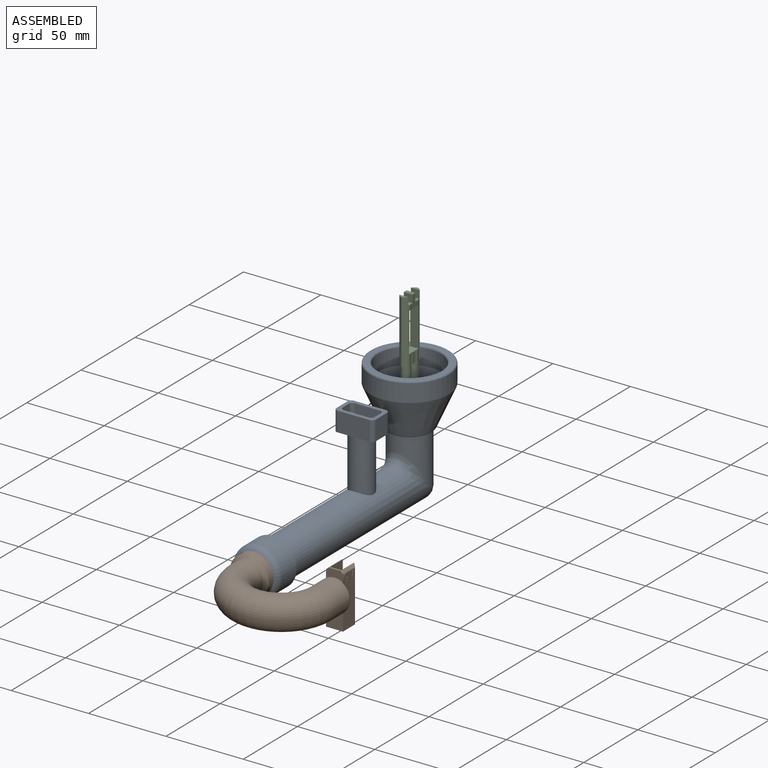
[diagram: assembled view]
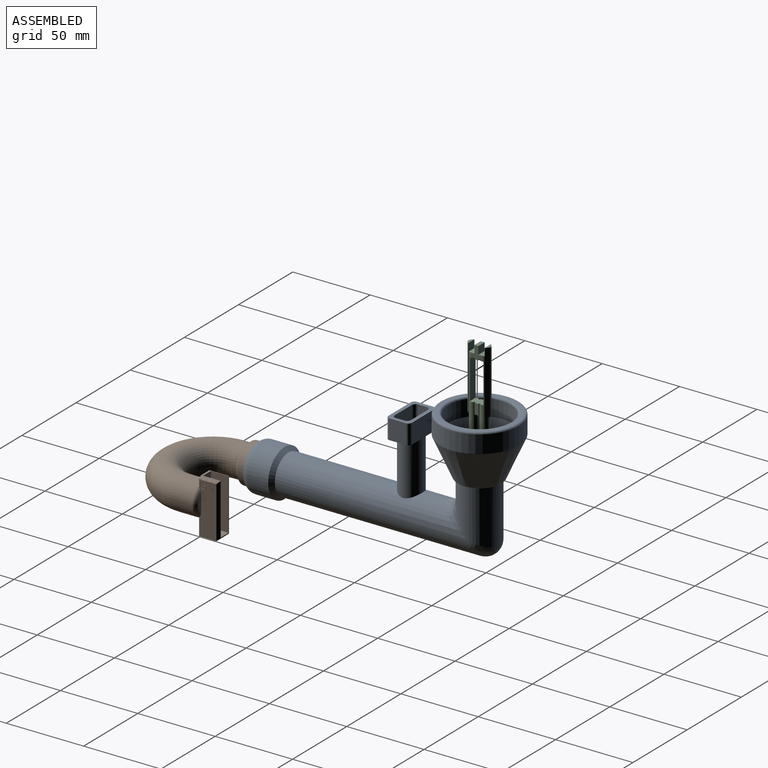
[diagram: assembled view, second angle]
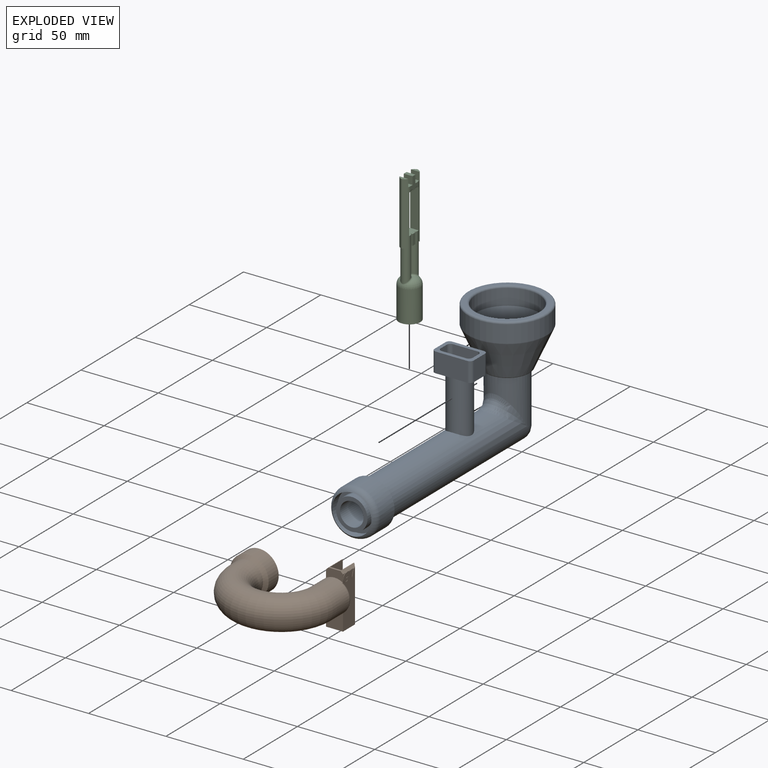
[diagram: exploded view]
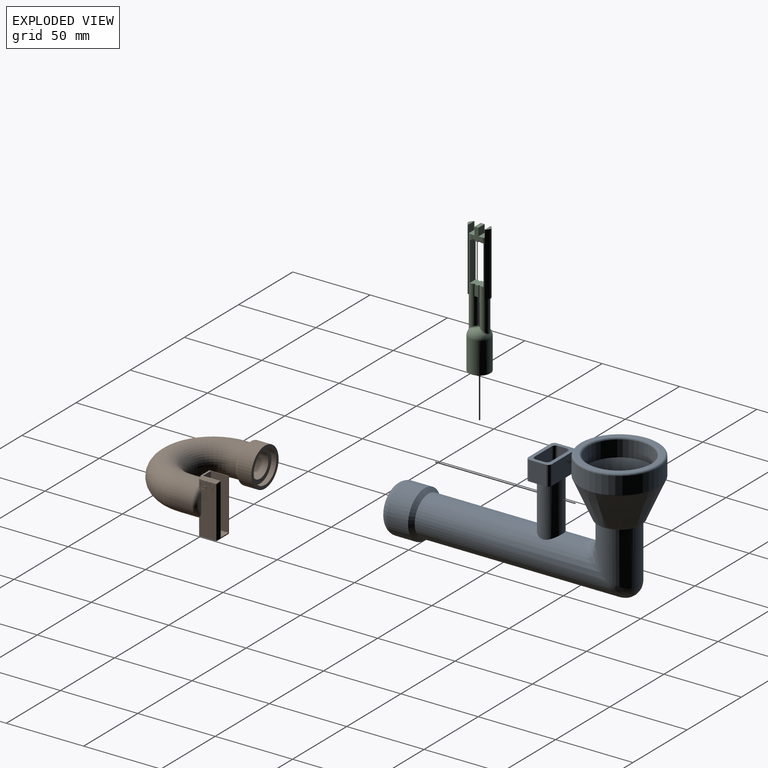
[diagram: exploded view, second angle]
ASSEMBLY  parts=3 mates=2
PART A: 59 faces, bbox 55.7x86.4x172.7 mm
  f0: plane 10.11x1.49mm, normal (0,-1,0), area 4.1mm2, adj f34,f35,f36,f43
  f1: plane 25.4x15.24mm, normal (0,-1,0), area 171.5mm2, adj f21,f22,f23,f24,f25,f26,f27,f28
  f2: cylinder r=12.7mm len=36.09mm, axis (0,1,0), area 2086.4mm2, adj f4,f5,f7
  f3: cylinder r=12.7mm len=128.53mm, axis (0,0,1), area 9271.2mm2, adj f4,f5,f10,f57
  f4: bspline ~25.4x20.32mm, area 353.2mm2, adj f2,f3
  f5: bspline ~25.4x12.7mm, area 316.3mm2, adj f2,f3
  f6: cylinder r=25.4mm len=50.8mm, axis (0,-1,0), area 1781.1mm2, adj f50,f51
  f7: plane 26.53x26.53mm, normal (0,1,0), area 46.2mm2, adj f2,f49
  f8: plane 48.26x48.26mm, normal (0,-1,0), area 364.8mm2, adj f47,f51
  f9: cone r=25.4mm half-angle=24deg, axis (0,-1,0), area 3332.6mm2, adj f49,f50
  f10: cylinder r=7.62mm len=34.31mm, axis (0,-1,0), area 1580mm2, adj f3,f19,f20
  f11: cylinder r=7.62mm len=39.9mm, axis (0,1,0), area 1434.2mm2, adj f13,f14,f48
  f12: cylinder r=7.62mm len=148.85mm, axis (0,0,1), area 6563.7mm2, adj f13,f14,f18,f55
  f13: bspline ~20.32x20.32mm, area 386mm2, adj f11,f12
  f14: bspline ~15.24x7.62mm, area 64.9mm2, adj f11,f12
  f15: cylinder r=20.32mm len=40.64mm, axis (0,-1,0), area 1321.5mm2, adj f17,f47
  f16: plane 19.94x19.94mm, normal (0,-1,0), area 63.8mm2, adj f46,f48
  f17: cone r=20.76mm half-angle=24deg, axis (0,-1,0), area 2232.8mm2, adj f15,f46
  f18: cylinder r=5.08mm len=38.84mm, axis (0,-1,0), area 1120.3mm2, adj f12,f38,f39,f40,f41,f42,f43,f44
  f19: plane 15.24x12.7mm, normal (0,1,0), area 99.9mm2, adj f10,f21,f22,f23,f24,f25
  f20: plane 15.24x12.7mm, normal (0,1,0), area 99.9mm2, adj f10,f21,f25,f26,f27,f28
  f21: plane 20.62x12.7mm, normal (0,0,1), area 261.8mm2, adj f1,f19,f20,f22,f28
  f22: cylinder r=2.39mm len=12.7mm, axis (0,1,0), area 47.7mm2, adj f1,f19,f21,f23
  f23: plane 12.7x10.46mm, normal (-1,0,0), area 132.8mm2, adj f1,f19,f22,f24
  f24: cylinder r=2.39mm len=12.7mm, axis (0,1,0), area 47.7mm2, adj f1,f19,f23,f25
  f25: plane 20.62x12.7mm, normal (0,0,-1), area 261.8mm2, adj f1,f19,f20,f24,f26
  f26: cylinder r=2.39mm len=12.7mm, axis (0,1,0), area 47.7mm2, adj f1,f20,f25,f27
  f27: plane 12.7x10.46mm, normal (1,0,0), area 132.8mm2, adj f1,f20,f26,f28
  f28: cylinder r=2.39mm len=12.7mm, axis (0,1,0), area 47.7mm2, adj f1,f20,f21,f27
  f29: plane 16.6x12.19mm, normal (0,0,-1), area 181mm2, adj f1,f30,f36,f44
  f30: cylinder r=2.39mm len=11.43mm, axis (0,-1,0), area 42.9mm2, adj f1,f29,f31,f37,f42
  f31: plane 11.43x5.67mm, normal (1,0,0), area 64.9mm2, adj f1,f30,f32,f37
  f32: cylinder r=2.39mm len=11.43mm, axis (0,-1,0), area 42.9mm2, adj f1,f31,f33,f37,f38
  f33: plane 16.6x12.19mm, normal (0,0,1), area 181mm2, adj f1,f32,f34,f39
  f34: cylinder r=2.39mm len=11.43mm, axis (0,-1,0), area 42.9mm2, adj f0,f1,f33,f35,f41
  f35: plane 11.43x5.67mm, normal (-1,0,0), area 64.9mm2, adj f0,f1,f34,f36
  f36: cylinder r=2.39mm len=11.43mm, axis (0,-1,0), area 42.9mm2, adj f0,f1,f29,f35,f45
  f37: plane 10.11x1.49mm, normal (0,-1,0), area 4.1mm2, adj f30,f31,f32,f40
  f38: bspline ~5.68x5.53mm, area 3.9mm2, adj f18,f32,f39,f40
  f39: bspline ~16.48x5.04mm, area 42.4mm2, adj f18,f33,f38,f41
  f40: torus R=10.16mm, axis (0,-1,0), area 57.5mm2, adj f18,f37,f38,f42
  f41: bspline ~5.29x5.29mm, area 3.9mm2, adj f18,f34,f39,f43
  f42: bspline ~5.29x5.29mm, area 3.9mm2, adj f18,f30,f40,f44
  f43: torus R=10.16mm, axis (0,-1,0), area 57.5mm2, adj f0,f18,f41,f45
  f44: bspline ~16.48x5.04mm, area 42.4mm2, adj f18,f29,f42,f45
  f45: bspline ~5.68x5.53mm, area 3.9mm2, adj f18,f36,f43,f44
  f46: torus R=9.97mm, axis (0,-1,0), area 97.6mm2, adj f16,f17
  f47: torus R=21.59mm, axis (0,-1,0), area 260.5mm2, adj f8,f15
  f48: torus R=8.89mm, axis (0,-1,0), area 101.3mm2, adj f11,f16
  f49: torus R=13.27mm, axis (0,-1,0), area 128mm2, adj f7,f9
  f50: torus R=24.13mm, axis (0,1,0), area 84.8mm2, adj f6,f9
  f51: torus R=24.13mm, axis (0,-1,0), area 312.6mm2, adj f6,f8
  f52: cylinder r=12.7mm len=25.4mm, axis (0,0,-1), area 405.4mm2, adj f56,f58
  f53: cylinder r=15.24mm len=30.48mm, axis (0,0,-1), area 1281.3mm2, adj f57,f58
  f54: cylinder r=10.16mm len=20.32mm, axis (0,0,-1), area 324.3mm2, adj f55,f56
  f55: plane 20.32x20.32mm, normal (0,0,1), area 141.9mm2, adj f12,f54
  f56: plane 25.4x25.4mm, normal (0,0,1), area 182.4mm2, adj f52,f54
  f57: cone r=17.78mm half-angle=45deg, axis (0,0,1), area 315.3mm2, adj f3,f53
  f58: torus R=10.16mm, axis (0,0,1), area 480mm2, adj f52,f53
PART B: 126 faces, bbox 77.7x64.3x35.1 mm
  f0: plane 33.41x12.45mm, normal (1,0,0), area 335.7mm2, adj f7,f12,f13,f16,f25,f30,f31,f32
  f1: cylinder r=10.41mm len=20.83mm, axis (0,-1,0), area 290.9mm2, adj f6,f11
  f2: cylinder r=7.62mm len=15.24mm, axis (0,-1,0), area 608mm2, adj f3,f5
  f3: torus R=25.4mm, axis (0,0,1), area 3820.5mm2, adj f2,f4
  f4: cylinder r=7.62mm len=15.24mm, axis (0,1,0), area 589.2mm2, adj f3,f14,f18,f20,f22,f27,f28
  f5: plane 20.83x20.83mm, normal (0,1,0), area 158.3mm2, adj f2,f8
  f6: torus R=25.4mm, axis (0,0,1), area 5221.3mm2, adj f1,f7
  f7: cylinder r=10.41mm len=20.83mm, axis (0,1,0), area 777.2mm2, adj f0,f6,f12,f13,f17,f29,f30
  f8: cylinder r=10.41mm len=20.83mm, axis (0,-1,0), area 207.8mm2, adj f5,f10
  f9: cylinder r=12.55mm len=25.1mm, axis (0,-1,0), area 732.9mm2, adj f10,f11
  f10: plane 25.1x25.1mm, normal (0,1,0), area 153.9mm2, adj f8,f9
  f11: cone r=10.41mm half-angle=45deg, axis (0,1,0), area 217.7mm2, adj f1,f9
  f12: plane 10.95x6.38mm, normal (0,-1,0), area 56mm2, adj f0,f7,f15,f17,f31,f35
  f13: plane 10.95x10.83mm, normal (0,-1,0), area 107.1mm2, adj f0,f7,f16,f17
  f14: plane 13.46x4.05mm, normal (0,-1,0), area 38.8mm2, adj f4,f20
  f15: plane 12.7x7.91mm, normal (0,0,1), area 18.7mm2, adj f12,f18,f20,f21,f24,f31,f35
  f16: plane 11.18x10.95mm, normal (0,0,-1), area 122.4mm2, adj f0,f13,f17,f33
  f17: plane 33.4x12.45mm, normal (-1,0,0), area 354.1mm2, adj f7,f12,f13,f16,f26,f29,f34,f35
  f18: plane 33.19x14.14mm, normal (1,0,0), area 401.6mm2, adj f4,f15,f19,f21,f22,f23,f24,f27
  f19: plane 11.43x7.14mm, normal (0,0,1), area 81.7mm2, adj f18,f20,f21,f23
  f20: plane 33.19x14.14mm, normal (-1,0,0), area 401.6mm2, adj f4,f14,f15,f19,f21,f23,f24,f27
  f21: plane 33.4x7.91mm, normal (0,1,0), area 28.2mm2, adj f15,f18,f19,f20,f32,f33,f34
  f22: plane 13.46x4.05mm, normal (0,-1,0), area 38.8mm2, adj f4,f18
  f23: plane 8.27x7.14mm, normal (0,1,0), area 56mm2, adj f18,f19,f20,f27
  f24: plane 7.14x5.73mm, normal (0,1,0), area 37.8mm2, adj f15,f18,f20,f28
  f25: plane 11.31x2.4mm, normal (0,1,0), area 18.7mm2, adj f0,f30
  f26: plane 11.31x2.4mm, normal (0,1,0), area 18.7mm2, adj f17,f29
  f27: cone r=7.62mm half-angle=45deg, axis (0,1,0), area 26.9mm2, adj f4,f18,f20,f23
  f28: cone r=7.62mm half-angle=45deg, axis (0,1,0), area 26.9mm2, adj f4,f18,f20,f24
  f29: torus R=7.87mm, axis (0,1,0), area 72.3mm2, adj f7,f17,f26
  f30: torus R=7.87mm, axis (0,1,0), area 72.3mm2, adj f0,f7,f25
  f31: plane 12.7x1.52mm, normal (0.71,0,0.71), area 25.7mm2, adj f0,f12,f15,f32,f63
  f32: plane 34.93x1.52mm, normal (0.71,0.71,0), area 72mm2, adj f0,f21,f31,f33
  f33: plane 10.95x1.52mm, normal (0,0.71,-0.71), area 20.3mm2, adj f16,f21,f32,f34
  f34: plane 34.93x1.52mm, normal (-0.71,0.71,0), area 72mm2, adj f17,f21,f33,f35
  f35: plane 12.7x1.52mm, normal (-0.71,0,0.71), area 25.7mm2, adj f12,f15,f17,f34
  f36: extruded ~1.08x0.23mm, area 0.3mm2, adj f0,f37,f61,f63,f104
  f37: extruded ~1.85x0.78mm, area 0.5mm2, adj f0,f36,f38,f63,f102
  f38: extruded ~2.03x0.69mm, area 0.5mm2, adj f0,f37,f39,f100
  f39: plane 0.23x0.09mm, normal (0,-1,0), area 0mm2, adj f0,f38,f40,f98
  f40: extruded ~2.02x0.7mm, area 0.5mm2, adj f0,f39,f41,f96
  f41: extruded ~1.81x0.78mm, area 0.5mm2, adj f0,f40,f42,f94
  f42: extruded ~1.24x0.23mm, area 0.3mm2, adj f0,f41,f43,f92
  f43: extruded ~0.72x0.48mm, area 0.2mm2, adj f0,f42,f44,f90
  f44: plane 2.01x0.23mm, normal (0,1,0), area 0.5mm2, adj f0,f43,f45,f83,f88
  f45: plane 1.66x0.23mm, normal (0,0,1), area 0.4mm2, adj f44,f46,f62,f83,f84,f88
  f46: plane 0.58x0.23mm, normal (0,-1,0), area 0.1mm2, adj f0,f45,f47,f83,f84
  f47: plane 0.91x0.23mm, normal (0,-0.04,-1), area 0.2mm2, adj f0,f46,f48,f85
  f48: plane 1.21x0.23mm, normal (0,-1,0), area 0.3mm2, adj f0,f47,f49,f86
  f49: extruded ~0.46x0.23mm, area 0.1mm2, adj f0,f48,f50,f87
  f50: extruded ~0.74x0.23mm, area 0.2mm2, adj f0,f49,f51,f89
  f51: extruded ~1.3x0.61mm, area 0.3mm2, adj f0,f50,f52,f91
  f52: extruded ~1.61x0.47mm, area 0.4mm2, adj f0,f51,f53,f93
  f53: plane 0.23x0.1mm, normal (0,1,0), area 0mm2, adj f0,f52,f54,f95
  f54: extruded ~1.59x0.48mm, area 0.4mm2, adj f0,f53,f55,f97
  f55: extruded ~1.38x0.61mm, area 0.4mm2, adj f0,f54,f56,f99
  f56: extruded ~0.63x0.23mm, area 0.1mm2, adj f0,f55,f57,f101
  f57: extruded ~0.45x0.25mm, area 0.1mm2, adj f0,f56,f58,f103
  f58: plane 0.76x0.23mm, normal (0,-0.97,-0.23), area 0.2mm2, adj f0,f57,f59,f105
  f59: plane 0.52x0.23mm, normal (0,0,-1), area 0.1mm2, adj f0,f58,f60,f107
  f60: plane 1x0.23mm, normal (0,1,0), area 0.2mm2, adj f0,f59,f61,f108
  f61: extruded ~0.79x0.51mm, area 0.2mm2, adj f0,f36,f60,f106
  f62: plane 5.65x4.42mm, normal (1,0,0), area 8.9mm2, adj f45,f84,f85,f86,f87,f88,f89,f90
  f63: plane 0.52x0.01mm, normal (-1,0,0), area 0mm2, adj f31,f36,f37
  f64: plane 0.48x0.23mm, normal (0,1,0), area 0.1mm2, adj f0,f65,f81,f124
  f65: plane 1.75x0.23mm, normal (0,0,1), area 0.4mm2, adj f0,f64,f66,f125
  f66: plane 0.48x0.23mm, normal (0,-1,0), area 0.1mm2, adj f0,f65,f67,f123
  f67: plane 0.44x0.23mm, normal (0,-0.14,-0.99), area 0.1mm2, adj f0,f66,f68,f121
  f68: plane 4.99x1.86mm, normal (0,-0.94,-0.35), area 1.2mm2, adj f0,f67,f69,f119
  f69: plane 0.64x0.23mm, normal (0,0,-1), area 0.1mm2, adj f0,f68,f70,f117
  f70: plane 4.99x1.86mm, normal (0,0.94,-0.35), area 1.2mm2, adj f0,f69,f71,f116
  f71: plane 0.44x0.23mm, normal (0,0.14,-0.99), area 0.1mm2, adj f0,f70,f72,f115
  f72: plane 0.48x0.23mm, normal (0,1,0), area 0.1mm2, adj f0,f71,f73,f114
  f73: plane 1.75x0.23mm, normal (0,0,1), area 0.4mm2, adj f0,f72,f74,f113
  f74: plane 0.48x0.23mm, normal (0,-1,0), area 0.1mm2, adj f0,f73,f75,f112
  f75: plane 0.5x0.23mm, normal (0,-0.15,-0.99), area 0.1mm2, adj f0,f74,f76,f111
  f76: plane 3.6x1.24mm, normal (0,-0.95,0.32), area 0.9mm2, adj f0,f75,f77,f110
  f77: plane 0.44x0.23mm, normal (0,-0.96,0.28), area 0.1mm2, adj f0,f76,f78,f109
  f78: plane 0.26x0.08mm, normal (0,0,1), area 0mm2, adj f0,f77,f79,f82,f109,f118
  f79: plane 0.44x0.23mm, normal (0,0.96,0.28), area 0.1mm2, adj f0,f78,f80,f118
  f80: plane 3.6x1.24mm, normal (0,0.95,0.33), area 0.9mm2, adj f0,f79,f81,f120
  f81: plane 0.51x0.23mm, normal (0,0.15,-0.99), area 0.1mm2, adj f0,f64,f80,f122
  f82: plane 5.49x5.19mm, normal (1,0,0), area 8.1mm2, adj f78,f109,f110,f111,f112,f113,f114,f115
  f83: cylinder r=0.03mm len=1.66mm, axis (0,1,0), area 0.1mm2, adj f0,f44,f45,f46
  f84: cylinder r=0.03mm len=0.55mm, axis (0,0,1), area 0mm2, adj f45,f46,f62,f85
  f85: cylinder r=0.03mm len=0.93mm, axis (0,-1,0.04), area 0mm2, adj f47,f62,f84,f86
  f86: cylinder r=0.03mm len=1.25mm, axis (0,0,1), area 0mm2, adj f48,f62,f85,f87
  f87: bspline ~0.64x0.3mm, area 0mm2, adj f49,f62,f86,f89
  f88: cylinder r=0.03mm len=1.98mm, axis (0,0,-1), area 0.1mm2, adj f44,f45,f62,f90
  f89: bspline ~0.94x0.13mm, area 0mm2, adj f50,f62,f87,f91
  f90: bspline ~0.97x0.66mm, area 0mm2, adj f43,f62,f88,f92
  f91: bspline ~2.08x1.02mm, area 0.1mm2, adj f51,f62,f89,f93
  f92: bspline ~1.55x0.28mm, area 0.1mm2, adj f42,f62,f90,f94
  f93: bspline ~2.22x0.7mm, area 0.1mm2, adj f52,f62,f91,f95
  f94: bspline ~2.79x1.07mm, area 0.1mm2, adj f41,f62,f92,f96
  f95: cylinder r=0.03mm len=0.1mm, axis (0,0,-1), area 0mm2, adj f53,f62,f93,f97
  f96: bspline ~2.52x0.79mm, area 0.1mm2, adj f40,f62,f94,f98
  f97: bspline ~2.19x0.71mm, area 0.1mm2, adj f54,f62,f95,f99
  f98: cylinder r=0.03mm len=0.09mm, axis (0,0,1), area 0mm2, adj f39,f62,f96,f100
  f99: bspline ~2.24x1.04mm, area 0.1mm2, adj f55,f62,f97,f101
  f100: bspline ~2.76x0.99mm, area 0.1mm2, adj f38,f62,f98,f102
  f101: bspline ~0.79x0.17mm, area 0mm2, adj f56,f62,f99,f103
  f102: bspline ~2.83x1.07mm, area 0.1mm2, adj f37,f62,f100,f104
  f103: bspline ~0.69x0.41mm, area 0mm2, adj f57,f62,f101,f105
  f104: bspline ~1.34x0.24mm, area 0mm2, adj f36,f62,f102,f106
  f105: cylinder r=0.03mm len=0.78mm, axis (0,-0.23,0.97), area 0mm2, adj f58,f62,f103,f107
  f106: bspline ~1.14x0.77mm, area 0mm2, adj f61,f62,f104,f108
  f107: cylinder r=0.03mm len=0.52mm, axis (0,-1,0), area 0mm2, adj f59,f62,f105,f108
  f108: cylinder r=0.03mm len=1mm, axis (0,0,-1), area 0mm2, adj f60,f62,f106,f107
  f109: cylinder r=0.03mm len=0.44mm, axis (0,0.28,0.96), area 0mm2, adj f77,f78,f82,f110
  f110: cylinder r=0.03mm len=3.64mm, axis (0,0.32,0.95), area 0.2mm2, adj f76,f82,f109,f111
  f111: cylinder r=0.03mm len=0.53mm, axis (0,-0.99,0.15), area 0mm2, adj f75,f82,f110,f112
  f112: cylinder r=0.03mm len=0.48mm, axis (0,0,1), area 0mm2, adj f74,f82,f111,f113
  f113: cylinder r=0.03mm len=1.75mm, axis (0,1,0), area 0.1mm2, adj f73,f82,f112,f114
  f114: cylinder r=0.03mm len=0.48mm, axis (0,0,-1), area 0mm2, adj f72,f82,f113,f115
  f115: cylinder r=0.03mm len=0.46mm, axis (0,-0.99,-0.14), area 0mm2, adj f71,f82,f114,f116
  f116: cylinder r=0.03mm len=5.02mm, axis (0,-0.35,-0.94), area 0.2mm2, adj f70,f82,f115,f117
  f117: cylinder r=0.03mm len=0.64mm, axis (0,-1,0), area 0mm2, adj f69,f82,f116,f119
  f118: cylinder r=0.03mm len=0.44mm, axis (0,0.28,-0.96), area 0mm2, adj f78,f79,f82,f120
  f119: cylinder r=0.03mm len=5.02mm, axis (0,-0.35,0.94), area 0.2mm2, adj f68,f82,f117,f121
  f120: cylinder r=0.03mm len=3.64mm, axis (0,0.33,-0.95), area 0.2mm2, adj f80,f82,f118,f122
  f121: cylinder r=0.03mm len=0.46mm, axis (0,-0.99,0.14), area 0mm2, adj f67,f82,f119,f123
  f122: cylinder r=0.03mm len=0.54mm, axis (0,-0.99,-0.15), area 0mm2, adj f81,f82,f120,f124
  f123: cylinder r=0.03mm len=0.48mm, axis (0,0,1), area 0mm2, adj f66,f82,f121,f125
  f124: cylinder r=0.03mm len=0.48mm, axis (0,0,-1), area 0mm2, adj f64,f82,f122,f125
  f125: cylinder r=0.03mm len=1.75mm, axis (0,1,0), area 0.1mm2, adj f65,f82,f123,f124
PART C: 57 faces, bbox 14x84.6x14.9 mm
  f0: plane 6.86x2.54mm, normal (1,0,0), area 17.4mm2, adj f2,f4,f41,f56
  f1: plane 8.38x6.3mm, normal (-1,0,0), area 29.9mm2, adj f6,f7,f9,f12,f20,f23,f24,f26
  f2: plane 6.86x1.08mm, normal (0,0,1), area 7.4mm2, adj f0,f7,f41,f56
  f3: plane 6.86x1.04mm, normal (0,0,1), area 7.1mm2, adj f7,f21,f41,f56
  f4: plane 6.86x1.08mm, normal (0,0,-1), area 7.4mm2, adj f0,f6,f41,f56
  f5: plane 6.86x1.04mm, normal (0,0,-1), area 7.1mm2, adj f6,f21,f41,f56
  f6: cylinder r=2.86mm len=61.56mm, axis (0,1,0), area 490.6mm2, adj f1,f4,f5,f13,f15,f20,f25,f26
  f7: cylinder r=2.86mm len=61.55mm, axis (0,1,0), area 486.8mm2, adj f1,f2,f3,f8,f9,f14,f16,f20
  f8: cylinder r=1.02mm len=1.88mm, axis (0,0,1), area 1.6mm2, adj f7,f11,f16,f20,f37
  f9: cylinder r=1.02mm len=1.88mm, axis (0,0,-1), area 1.5mm2, adj f1,f7,f20,f38
  f10: plane 0.24x0.23mm, normal (0,-1,0), area 0mm2, adj f28,f30,f32
  f11: plane 8.38x6.35mm, normal (1,0,0), area 30mm2, adj f8,f12,f15,f16,f20,f23,f24,f26
  f12: plane 5.72x2.54mm, normal (0,-1,0), area 14.5mm2, adj f1,f11,f24,f27
  f13: plane 5.72x2.12mm, normal (0,-1,0), area 7.6mm2, adj f6,f25,f45,f46,f50,f51
  f14: plane 5.72x2.12mm, normal (0,-1,0), area 7.6mm2, adj f7,f22,f42,f43,f48,f49
  f15: plane 2.55x0.04mm, normal (0,0,-1), area 0.1mm2, adj f6,f11,f26,f33
  f16: plane 2.57x0.04mm, normal (0,0,1), area 0.1mm2, adj f7,f8,f11,f23
  f17: plane 13.97x13.97mm, normal (0,1,0), area 153.3mm2, adj f19
  f18: plane 0.24x0.23mm, normal (0,-1,0), area 0mm2, adj f28,f30,f32
  f19: cylinder r=6.99mm len=20.32mm, axis (0,-1,0), area 891.8mm2, adj f17,f28
  f20: plane 8.84x5.72mm, normal (0,1,0), area 47.5mm2, adj f1,f6,f7,f8,f9,f11,f33,f34
  f21: plane 6.86x2.54mm, normal (-1,0,0), area 17.4mm2, adj f3,f5,f41,f56
  f22: plane 5.08x4.41mm, normal (0,0,-1), area 22.4mm2, adj f7,f14,f23
  f23: plane 5.72x4.04mm, normal (0,-1,0), area 22.3mm2, adj f1,f7,f11,f16,f22,f24,f36
  f24: plane 5.72x5.08mm, normal (0,0,1), area 29mm2, adj f1,f11,f12,f23
  f25: plane 5.08x4.41mm, normal (0,0,1), area 22.4mm2, adj f6,f13,f26
  f26: plane 5.72x4.04mm, normal (0,-1,0), area 22.3mm2, adj f1,f6,f11,f15,f25,f27,f35
  f27: plane 5.72x5.08mm, normal (0,0,-1), area 29mm2, adj f1,f11,f12,f26
  f28: torus R=1.91mm, axis (0,-1,0), area 184.2mm2, adj f10,f18,f19,f29,f31
  f29: bspline ~6.93x6.35mm, area 17.3mm2, adj f7,f28,f30
  f30: torus R=3.87mm, axis (0,-1,0), area 4.4mm2, adj f7,f10,f18,f29,f32
  f31: bspline ~6.93x6.35mm, area 17.3mm2, adj f6,f28,f32
  f32: torus R=3.87mm, axis (0,-1,0), area 4.4mm2, adj f6,f10,f18,f30,f31
  f33: cylinder r=1.02mm len=1.93mm, axis (0,0,1), area 1.7mm2, adj f6,f11,f15,f20,f39
  f34: cylinder r=1.02mm len=1.88mm, axis (0,0,-1), area 1.5mm2, adj f1,f6,f20,f40
  f35: plane 0.68x0.02mm, normal (0,-1,0), area 0mm2, adj f6,f26
  f36: plane 0.68x0.02mm, normal (0,-1,0), area 0mm2, adj f7,f23
  f37: plane 1.02x1.02mm, normal (0,0,1), area 0.2mm2, adj f8,f11,f20
  f38: plane 1.02x1.02mm, normal (0,0,1), area 0.2mm2, adj f1,f9,f20
  f39: plane 1.02x1.02mm, normal (0,0,-1), area 0.2mm2, adj f11,f20,f33
  f40: plane 1.02x1.02mm, normal (0,0,-1), area 0.2mm2, adj f1,f20,f34
  f41: plane 5.72x2.54mm, normal (0,1,0), area 11.4mm2, adj f0,f2,f3,f4,f5,f6,f7,f21
  f42: plane 40.64x0.64mm, normal (0,0,-1), area 26mm2, adj f7,f14,f44,f49
  f43: plane 40.64x0.68mm, normal (0,0,-1), area 27.6mm2, adj f7,f14,f44,f48
  f44: plane 5.72x2.11mm, normal (0,1,0), area 4.4mm2, adj f7,f42,f43,f48,f49
  f45: plane 40.64x0.67mm, normal (0,0,1), area 27.2mm2, adj f6,f13,f47,f50
  f46: plane 40.64x0.71mm, normal (0,0,1), area 28.9mm2, adj f6,f13,f47,f51
  f47: plane 5.72x2.08mm, normal (0,1,0), area 4.4mm2, adj f6,f45,f46,f50,f51
  f48: cylinder r=5.08mm len=40.64mm, axis (0,-1,0), area 147.4mm2, adj f14,f43,f44,f49
  f49: cylinder r=5.08mm len=40.64mm, axis (0,1,0), area 147.4mm2, adj f14,f42,f44,f48
  f50: cylinder r=5.08mm len=40.64mm, axis (0,-1,0), area 146.6mm2, adj f13,f45,f47,f51
  f51: cylinder r=5.08mm len=40.64mm, axis (0,1,0), area 146.6mm2, adj f13,f46,f47,f50
  f52: plane 25.4x5.4mm, normal (0,0,1), area 137.3mm2, adj f6,f20,f56
  f53: plane 25.4x5.4mm, normal (0,0,-1), area 137.3mm2, adj f7,f20,f56
  f54: plane 25.4x0.68mm, normal (1,0,0), area 17.3mm2, adj f6,f20,f56
  f55: plane 25.4x0.68mm, normal (1,0,0), area 17.3mm2, adj f7,f20,f56
  f56: plane 8.84x5.72mm, normal (0,-1,0), area 47.5mm2, adj f0,f2,f3,f4,f5,f6,f7,f21
PLACE A rot(axis=(0,0.71,-0.71),180deg) t=(-49.79,246.02,222.75)mm
PLACE B t=(-49.79,104.17,153.66)mm fixed
PLACE C rot(axis=(-1,0,0),90deg) t=(-49.79,246.02,178.3)mm
MATE cylindrical A.f52 <-> B.f1  axis (0,-1,0) through (-49.79,107.34,153.66)mm
MATE pin_slot A.f2 <-> C.f19  axis (0,0,-1) through (-49.79,246.02,188.46)mm
